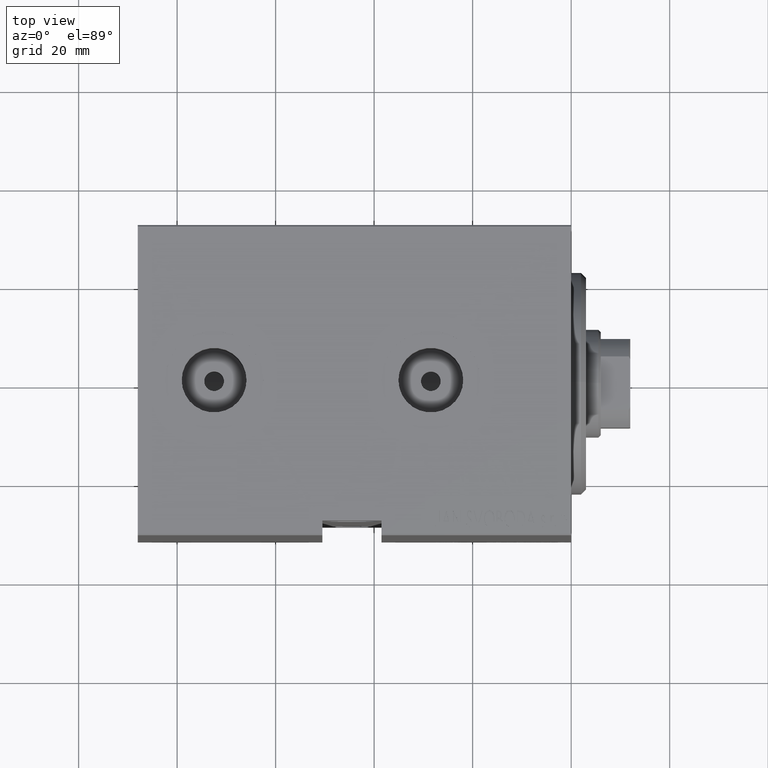
[diagram: clean part render]
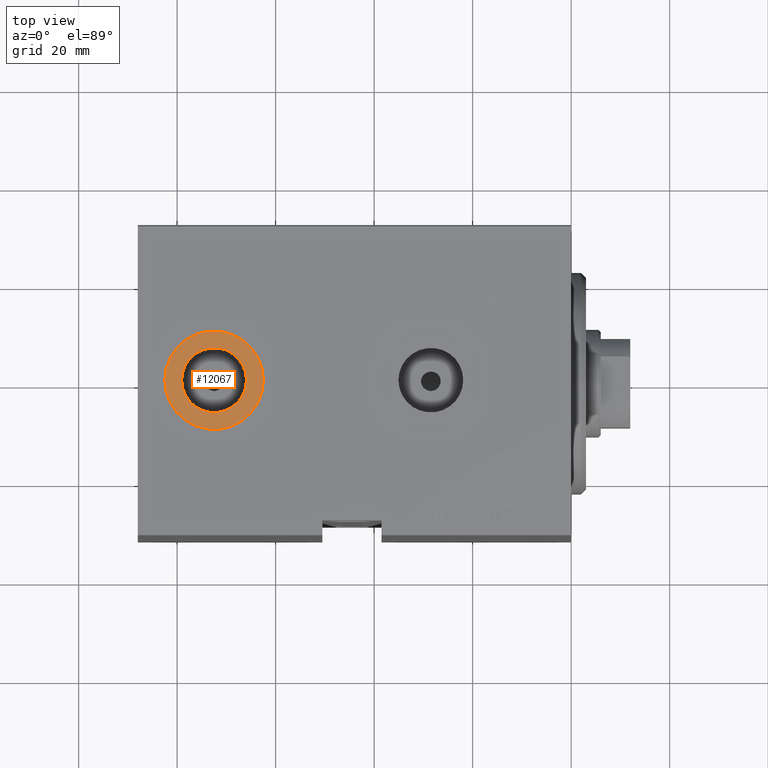
[diagram: same view with one face highlighted and labeled with its STEP entity id]
A machine part, top view. The second image highlights one B-rep face of the part: STEP entity #12067.
In plain terms, the highlighted planar face has unit normal (0, 0, 1).
Its self-contained STEP definition (entity closure, byte-faithful):
#35 = CIRCLE ( 'NONE', #41282, 9.999999999999994671 ) ;
#571 = DIRECTION ( 'NONE',  ( 1.000000000000000000, 0.000000000000000000, 0.000000000000000000 ) ) ;
#861 = CARTESIAN_POINT ( 'NONE',  ( 79.08000000000001251, -9.361999711620863359E-15, 42.39999999999999147 ) ) ;
#1205 = EDGE_CURVE ( 'NONE', #15608, #13618, #12008, .T. ) ;
#1513 = CARTESIAN_POINT ( 'NONE',  ( 72.50000000000001421, -9.361999711620863359E-15, 42.39999999999999147 ) ) ;
#1758 = VERTEX_POINT ( 'NONE', #40329 ) ;
#2152 = DIRECTION ( 'NONE',  ( 0.000000000000000000, 0.000000000000000000, 1.000000000000000000 ) ) ;
#3259 = DIRECTION ( 'NONE',  ( 0.000000000000000000, 0.000000000000000000, 1.000000000000000000 ) ) ;
#5490 = CARTESIAN_POINT ( 'NONE',  ( 72.50000000000001421, -9.361999711620863359E-15, 42.39999999999999147 ) ) ;
#5602 = DIRECTION ( 'NONE',  ( 1.000000000000000000, 0.000000000000000000, -0.000000000000000000 ) ) ;
#7971 = AXIS2_PLACEMENT_3D ( 'NONE', #16755, #16528, #5602 ) ;
#8496 = EDGE_LOOP ( 'NONE', ( #42656, #42225 ) ) ;
#9062 = EDGE_CURVE ( 'NONE', #1758, #17971, #35, .T. ) ;
#11452 = EDGE_CURVE ( 'NONE', #17971, #1758, #34251, .T. ) ;
#12008 = CIRCLE ( 'NONE', #21991, 6.580000000000002736 ) ;
#12067 = ADVANCED_FACE ( 'NONE', ( #33665, #23209 ), #36780, .T. ) ;
#13618 = VERTEX_POINT ( 'NONE', #861 ) ;
#13825 = ORIENTED_EDGE ( 'NONE', *, *, #1205, .F. ) ;
#14382 = DIRECTION ( 'NONE',  ( 0.000000000000000000, 0.000000000000000000, 1.000000000000000000 ) ) ;
#15608 = VERTEX_POINT ( 'NONE', #18265 ) ;
#16528 = DIRECTION ( 'NONE',  ( 0.000000000000000000, 0.000000000000000000, 1.000000000000000000 ) ) ;
#16755 = CARTESIAN_POINT ( 'NONE',  ( 72.50000000000001421, -9.361999711620863359E-15, 42.39999999999999147 ) ) ;
#17971 = VERTEX_POINT ( 'NONE', #43043 ) ;
#18114 = AXIS2_PLACEMENT_3D ( 'NONE', #1513, #2152, #42692 ) ;
#18265 = CARTESIAN_POINT ( 'NONE',  ( 65.92000000000000171, -8.556182117781904317E-15, 42.39999999999999147 ) ) ;
#21991 = AXIS2_PLACEMENT_3D ( 'NONE', #5490, #26872, #22637 ) ;
#22637 = DIRECTION ( 'NONE',  ( 1.000000000000000000, 0.000000000000000000, 0.000000000000000000 ) ) ;
#23209 = FACE_OUTER_BOUND ( 'NONE', #8496, .T. ) ;
#26872 = DIRECTION ( 'NONE',  ( 0.000000000000000000, 0.000000000000000000, 1.000000000000000000 ) ) ;
#27762 = CARTESIAN_POINT ( 'NONE',  ( 72.50000000000001421, -9.361999711620863359E-15, 42.39999999999999147 ) ) ;
#29413 = ORIENTED_EDGE ( 'NONE', *, *, #40753, .F. ) ;
#33665 = FACE_BOUND ( 'NONE', #40589, .T. ) ;
#34251 = CIRCLE ( 'NONE', #34955, 9.999999999999994671 ) ;
#34884 = DIRECTION ( 'NONE',  ( 1.000000000000000000, 0.000000000000000000, 0.000000000000000000 ) ) ;
#34955 = AXIS2_PLACEMENT_3D ( 'NONE', #37106, #3259, #34884 ) ;
#36780 = PLANE ( 'NONE',  #7971 ) ;
#37106 = CARTESIAN_POINT ( 'NONE',  ( 72.50000000000001421, -9.361999711620863359E-15, 42.39999999999999147 ) ) ;
#40329 = CARTESIAN_POINT ( 'NONE',  ( 82.50000000000000000, -9.361999711620863359E-15, 42.39999999999999147 ) ) ;
#40589 = EDGE_LOOP ( 'NONE', ( #29413, #13825 ) ) ;
#40753 = EDGE_CURVE ( 'NONE', #13618, #15608, #41602, .T. ) ;
#41282 = AXIS2_PLACEMENT_3D ( 'NONE', #27762, #14382, #571 ) ;
#41602 = CIRCLE ( 'NONE', #18114, 6.580000000000002736 ) ;
#42225 = ORIENTED_EDGE ( 'NONE', *, *, #11452, .T. ) ;
#42656 = ORIENTED_EDGE ( 'NONE', *, *, #9062, .T. ) ;
#42692 = DIRECTION ( 'NONE',  ( 1.000000000000000000, 0.000000000000000000, 0.000000000000000000 ) ) ;
#43043 = CARTESIAN_POINT ( 'NONE',  ( 62.50000000000001421, -8.137352912473510299E-15, 42.39999999999999147 ) ) ;